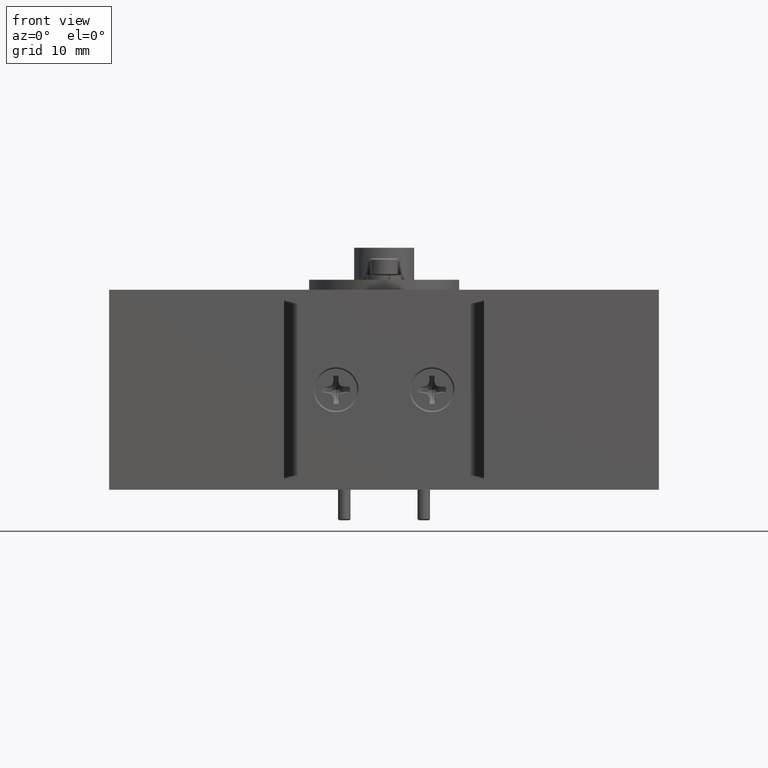
[diagram: clean part render]
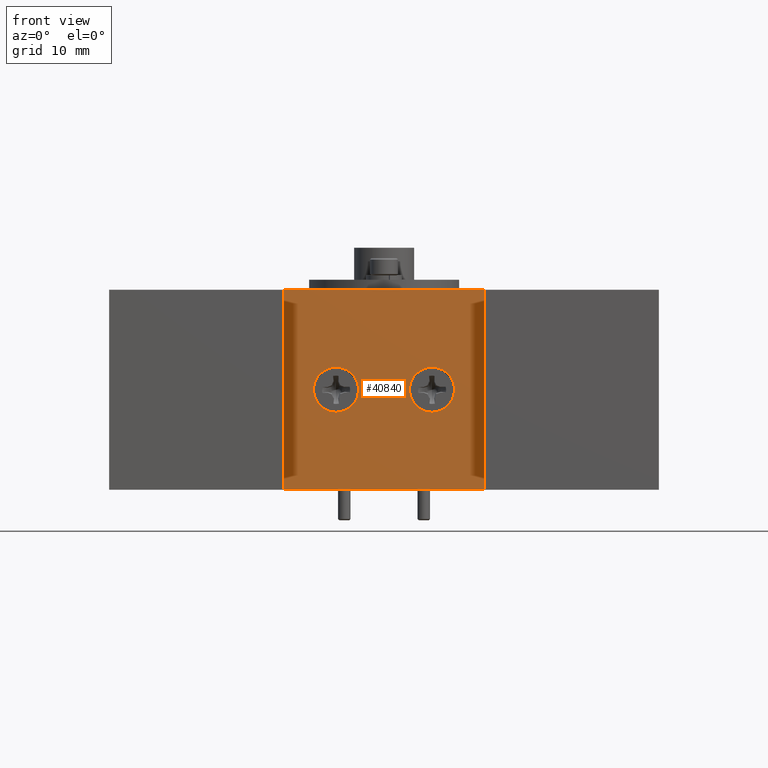
[diagram: same view with one face highlighted and labeled with its STEP entity id]
A machine part, front view. The second image highlights one B-rep face of the part: STEP entity #40840.
In plain terms, the highlighted planar face has unit normal (0, 1, 0).
Its self-contained STEP definition (entity closure, byte-faithful):
#311 = VERTEX_POINT ( 'NONE', #12693 ) ;
#1848 = CIRCLE ( 'NONE', #80711, 2.857499999999999900 ) ;
#4038 = FACE_BOUND ( 'NONE', #86428, .T. ) ;
#7324 = VECTOR ( 'NONE', #18144, 1000.000000000000000 ) ;
#7791 = CIRCLE ( 'NONE', #71399, 2.857499999999999900 ) ;
#12693 = CARTESIAN_POINT ( 'NONE',  ( -43.09917711743992200, 28.42957720897322800, 3.894164135767752600 ) ) ;
#14580 = DIRECTION ( 'NONE',  ( -0.0000000000000000000, -1.000000000000000000, -0.0000000000000000000 ) ) ;
#14774 = CIRCLE ( 'NONE', #16595, 2.857499999999999900 ) ;
#16552 = EDGE_CURVE ( 'NONE', #25785, #19985, #7791, .T. ) ;
#16595 = AXIS2_PLACEMENT_3D ( 'NONE', #98713, #99454, #90025 ) ;
#18144 = DIRECTION ( 'NONE',  ( 1.000000000000000000, 0.0000000000000000000, 0.0000000000000000000 ) ) ;
#18558 = CARTESIAN_POINT ( 'NONE',  ( -61.89517711743991400, 28.42957720897322800, 13.73666413576774700 ) ) ;
#19165 = CARTESIAN_POINT ( 'NONE',  ( -55.29117711743991500, 28.42957720897322800, 1.036664135767752600 ) ) ;
#19985 = VERTEX_POINT ( 'NONE', #39330 ) ;
#21866 = CIRCLE ( 'NONE', #95564, 2.857499999999999900 ) ;
#22572 = DIRECTION ( 'NONE',  ( 0.0000000000000000000, 0.0000000000000000000, -1.000000000000000000 ) ) ;
#23205 = CARTESIAN_POINT ( 'NONE',  ( -36.49517711743992300, 28.42957720897322800, 13.73666413576774700 ) ) ;
#23708 = CARTESIAN_POINT ( 'NONE',  ( -43.09917711743992200, 28.42957720897322800, 1.036664135767752600 ) ) ;
#24945 = LINE ( 'NONE', #70087, #7324 ) ;
#25714 = VECTOR ( 'NONE', #30517, 1000.000000000000000 ) ;
#25785 = VERTEX_POINT ( 'NONE', #74366 ) ;
#25986 = EDGE_LOOP ( 'NONE', ( #107216, #33700, #62823, #102131 ) ) ;
#27083 = FACE_BOUND ( 'NONE', #42952, .T. ) ;
#27845 = DIRECTION ( 'NONE',  ( 0.0000000000000000000, 0.0000000000000000000, -1.000000000000000000 ) ) ;
#30517 = DIRECTION ( 'NONE',  ( -0.0000000000000000000, -0.0000000000000000000, -1.000000000000000000 ) ) ;
#30824 = EDGE_CURVE ( 'NONE', #53808, #55824, #60865, .T. ) ;
#31692 = VECTOR ( 'NONE', #45065, 1000.000000000000000 ) ;
#33477 = CARTESIAN_POINT ( 'NONE',  ( -61.89517711743991400, 28.42957720897322800, 13.73666413576774700 ) ) ;
#33700 = ORIENTED_EDGE ( 'NONE', *, *, #30824, .F. ) ;
#34650 = CARTESIAN_POINT ( 'NONE',  ( -43.09917711743992200, 28.42957720897322800, -1.820835864232247300 ) ) ;
#35061 = CARTESIAN_POINT ( 'NONE',  ( -55.29117711743991500, 28.42957720897322800, 1.036664135767752600 ) ) ;
#35485 = DIRECTION ( 'NONE',  ( -0.0000000000000000000, -1.000000000000000000, -0.0000000000000000000 ) ) ;
#37866 = ORIENTED_EDGE ( 'NONE', *, *, #16552, .F. ) ;
#39330 = CARTESIAN_POINT ( 'NONE',  ( -55.29117711743991500, 28.42957720897322800, -1.820835864232247300 ) ) ;
#40840 = ADVANCED_FACE ( 'NONE', ( #27083, #4038, #71801 ), #68751, .F. ) ;
#42542 = LINE ( 'NONE', #18558, #31692 ) ;
#42952 = EDGE_LOOP ( 'NONE', ( #79279, #37866 ) ) ;
#44070 = EDGE_CURVE ( 'NONE', #85992, #64520, #80992, .T. ) ;
#44634 = CARTESIAN_POINT ( 'NONE',  ( -61.89517711743991400, 28.42957720897322800, 13.73666413576774700 ) ) ;
#44855 = DIRECTION ( 'NONE',  ( -0.0000000000000000000, -1.000000000000000000, -0.0000000000000000000 ) ) ;
#44906 = DIRECTION ( 'NONE',  ( 0.0000000000000000000, 0.0000000000000000000, -1.000000000000000000 ) ) ;
#45065 = DIRECTION ( 'NONE',  ( 1.000000000000000000, 0.0000000000000000000, 0.0000000000000000000 ) ) ;
#46565 = VERTEX_POINT ( 'NONE', #34650 ) ;
#47177 = CARTESIAN_POINT ( 'NONE',  ( -36.49517711743992300, 28.42957720897322800, 13.73666413576774700 ) ) ;
#49580 = EDGE_CURVE ( 'NONE', #311, #46565, #21866, .T. ) ;
#53808 = VERTEX_POINT ( 'NONE', #23205 ) ;
#54376 = ORIENTED_EDGE ( 'NONE', *, *, #107994, .F. ) ;
#55824 = VERTEX_POINT ( 'NONE', #56600 ) ;
#56600 = CARTESIAN_POINT ( 'NONE',  ( -36.49517711743992300, 28.42957720897322800, -11.66333586423225200 ) ) ;
#58542 = EDGE_CURVE ( 'NONE', #64520, #55824, #24945, .T. ) ;
#60032 = DIRECTION ( 'NONE',  ( 0.0000000000000000000, -0.0000000000000000000, 1.000000000000000000 ) ) ;
#60646 = DIRECTION ( 'NONE',  ( -0.0000000000000000000, -0.0000000000000000000, -1.000000000000000000 ) ) ;
#60865 = LINE ( 'NONE', #47177, #25714 ) ;
#62823 = ORIENTED_EDGE ( 'NONE', *, *, #97211, .F. ) ;
#64520 = VERTEX_POINT ( 'NONE', #80638 ) ;
#68751 = PLANE ( 'NONE',  #75421 ) ;
#69502 = DIRECTION ( 'NONE',  ( 0.0000000000000000000, 1.000000000000000000, 0.0000000000000000000 ) ) ;
#69677 = EDGE_CURVE ( 'NONE', #19985, #25785, #1848, .T. ) ;
#70087 = CARTESIAN_POINT ( 'NONE',  ( -61.89517711743991400, 28.42957720897322800, -11.66333586423225200 ) ) ;
#71399 = AXIS2_PLACEMENT_3D ( 'NONE', #35061, #44855, #27845 ) ;
#71801 = FACE_OUTER_BOUND ( 'NONE', #25986, .T. ) ;
#74366 = CARTESIAN_POINT ( 'NONE',  ( -55.29117711743991500, 28.42957720897322800, 3.894164135767752600 ) ) ;
#75421 = AXIS2_PLACEMENT_3D ( 'NONE', #33477, #69502, #60032 ) ;
#78930 = ORIENTED_EDGE ( 'NONE', *, *, #49580, .F. ) ;
#79279 = ORIENTED_EDGE ( 'NONE', *, *, #69677, .F. ) ;
#80019 = CARTESIAN_POINT ( 'NONE',  ( -61.89517711743991400, 28.42957720897322800, 13.73666413576774700 ) ) ;
#80638 = CARTESIAN_POINT ( 'NONE',  ( -61.89517711743991400, 28.42957720897322800, -11.66333586423225200 ) ) ;
#80711 = AXIS2_PLACEMENT_3D ( 'NONE', #19165, #35485, #44906 ) ;
#80992 = LINE ( 'NONE', #80019, #98607 ) ;
#85992 = VERTEX_POINT ( 'NONE', #44634 ) ;
#86428 = EDGE_LOOP ( 'NONE', ( #54376, #78930 ) ) ;
#90025 = DIRECTION ( 'NONE',  ( 0.0000000000000000000, 0.0000000000000000000, -1.000000000000000000 ) ) ;
#95564 = AXIS2_PLACEMENT_3D ( 'NONE', #23708, #14580, #22572 ) ;
#97211 = EDGE_CURVE ( 'NONE', #85992, #53808, #42542, .T. ) ;
#98607 = VECTOR ( 'NONE', #60646, 1000.000000000000000 ) ;
#98713 = CARTESIAN_POINT ( 'NONE',  ( -43.09917711743992200, 28.42957720897322800, 1.036664135767752600 ) ) ;
#99454 = DIRECTION ( 'NONE',  ( -0.0000000000000000000, -1.000000000000000000, -0.0000000000000000000 ) ) ;
#102131 = ORIENTED_EDGE ( 'NONE', *, *, #44070, .T. ) ;
#107216 = ORIENTED_EDGE ( 'NONE', *, *, #58542, .T. ) ;
#107994 = EDGE_CURVE ( 'NONE', #46565, #311, #14774, .T. ) ;